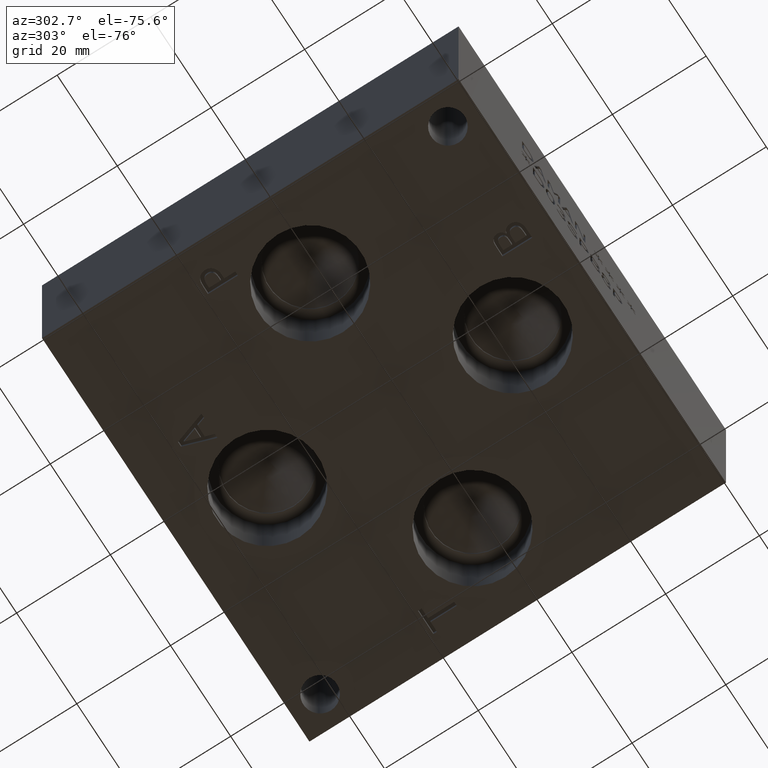
[diagram: clean part render]
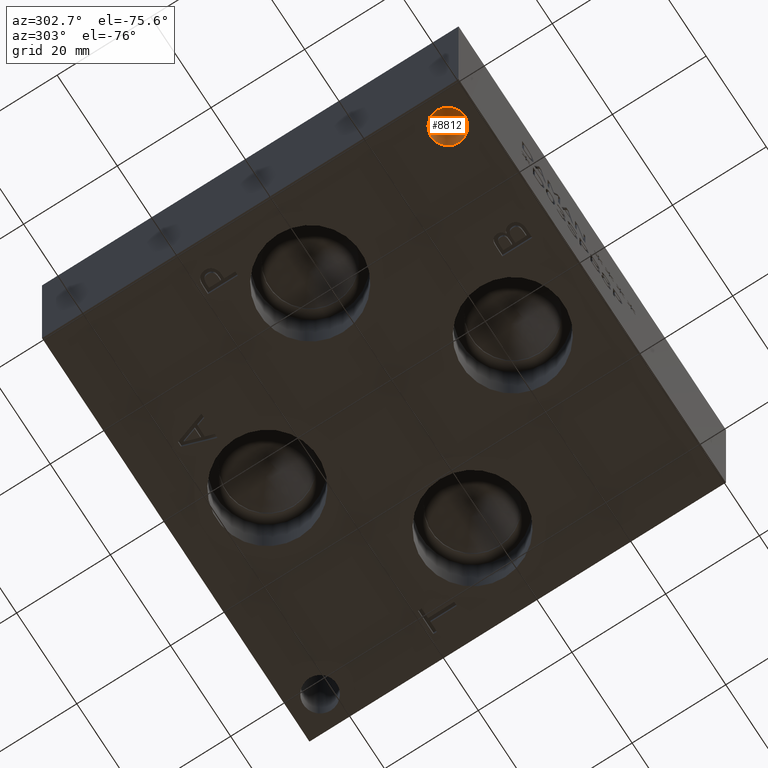
[diagram: same view with one face highlighted and labeled with its STEP entity id]
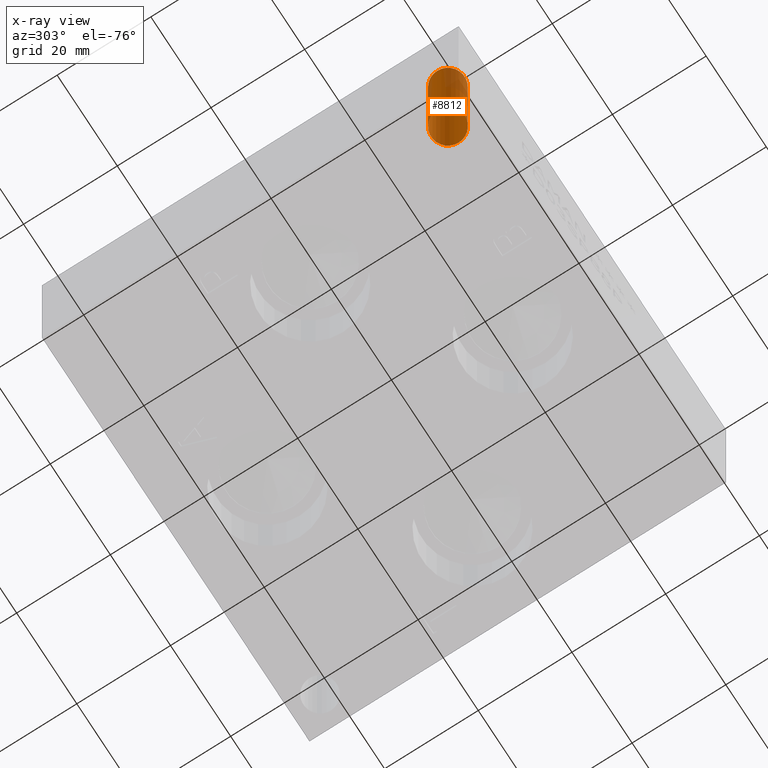
[diagram: x-ray of the same camera — body ghosted, the highlighted face saturated]
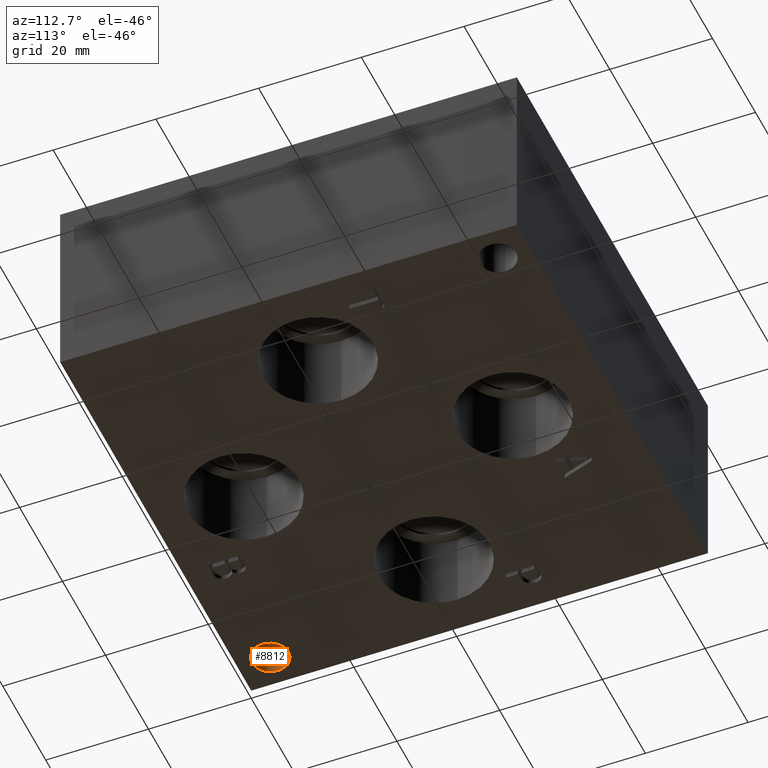
[diagram: same view with one face highlighted and labeled with its STEP entity id]
A machine part, auxiliary view. The second image highlights one B-rep face of the part: STEP entity #8812.
The next image is the same camera in x-ray: the body ghosted, the highlighted face saturated — about 19% of this face is hidden behind the body in this view.
A second angle (auxiliary view) of the same face is appended — the face is thin or edge-on in the first view.
In plain terms, the highlighted cylindrical surface (bore or boss wall) has radius 3.5687 mm, axis along (0, 0, 1).
Its self-contained STEP definition (entity closure, byte-faithful):
#23=CYLINDRICAL_SURFACE('',#9176,3.5687);
#60=CIRCLE('',#8880,3.5687);
#84=CIRCLE('',#9172,3.5687);
#894=FACE_OUTER_BOUND('',#1391,.T.);
#1391=EDGE_LOOP('',(#7701,#7702,#7703,#7704));
#2269=LINE('',#14976,#3125);
#3125=VECTOR('',#10723,3.5687);
#3475=VERTEX_POINT('',#11172);
#4181=VERTEX_POINT('',#14967);
#4316=EDGE_CURVE('',#3475,#3475,#60,.T.);
#5373=EDGE_CURVE('',#4181,#4181,#84,.T.);
#5377=EDGE_CURVE('',#4181,#3475,#2269,.T.);
#7701=ORIENTED_EDGE('',*,*,#5373,.T.);
#7702=ORIENTED_EDGE('',*,*,#5377,.T.);
#7703=ORIENTED_EDGE('',*,*,#4316,.F.);
#7704=ORIENTED_EDGE('',*,*,#5377,.F.);
#8812=ADVANCED_FACE('',(#894),#23,.F.);
#8880=AXIS2_PLACEMENT_3D('',#11173,#9347,#9348);
#9172=AXIS2_PLACEMENT_3D('',#14968,#10712,#10713);
#9176=AXIS2_PLACEMENT_3D('',#14975,#10721,#10722);
#9347=DIRECTION('center_axis',(0.,0.,1.));
#9348=DIRECTION('ref_axis',(1.,0.,0.));
#10712=DIRECTION('center_axis',(0.,0.,1.));
#10713=DIRECTION('ref_axis',(1.,0.,0.));
#10721=DIRECTION('center_axis',(0.,0.,1.));
#10722=DIRECTION('ref_axis',(1.,0.,0.));
#10723=DIRECTION('',(0.,0.,-1.));
#11172=CARTESIAN_POINT('',(2.7813,6.35,0.));
#11173=CARTESIAN_POINT('Origin',(6.35,6.35,0.));
#14967=CARTESIAN_POINT('',(2.7813,6.35,28.448));
#14968=CARTESIAN_POINT('Origin',(6.35,6.35,28.448));
#14975=CARTESIAN_POINT('Origin',(6.35,6.35,-93.2698214964152));
#14976=CARTESIAN_POINT('',(2.7813,6.35,-93.2698214964152));